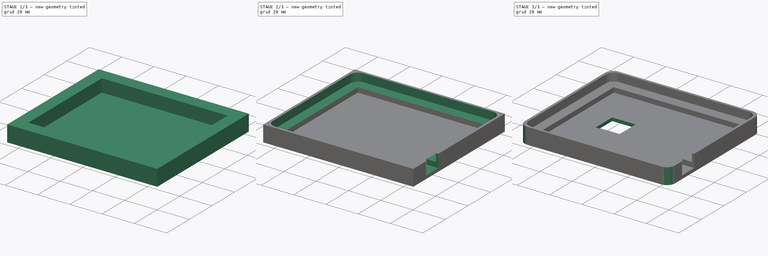
[diagram: build sequence overview — one tinted view per stage of 3, left to right]
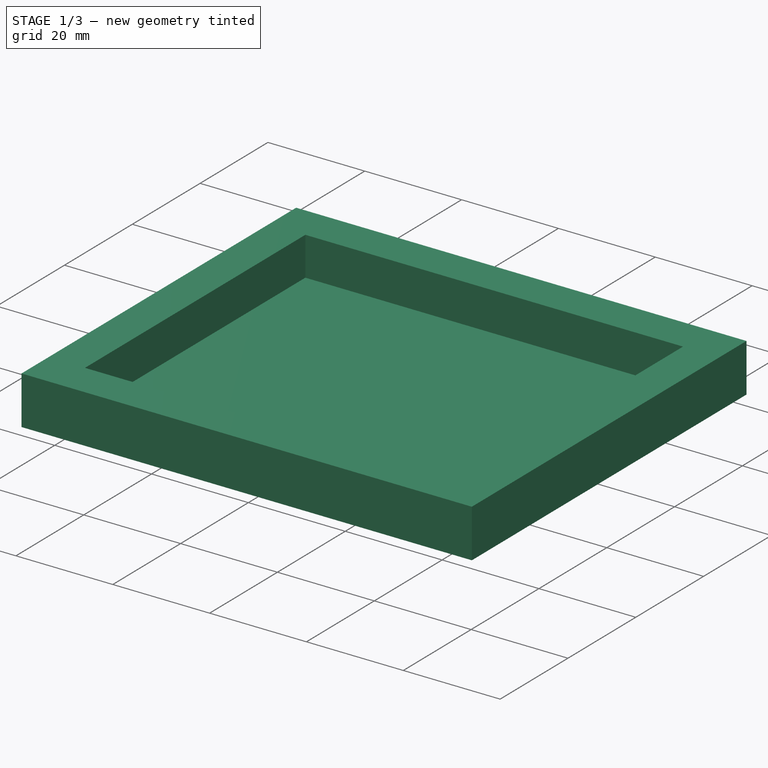
[diagram: stage 1 of 3 — iso view after this stage's code; geometry added in this stage tinted green]
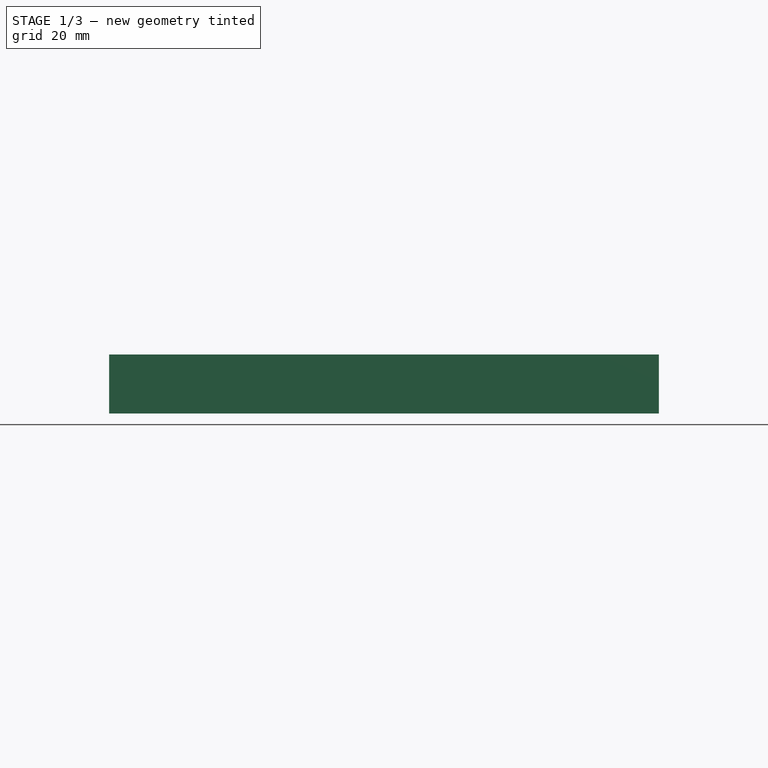
[diagram: stage 1 of 3 — front view after this stage's code; geometry added in this stage tinted green]
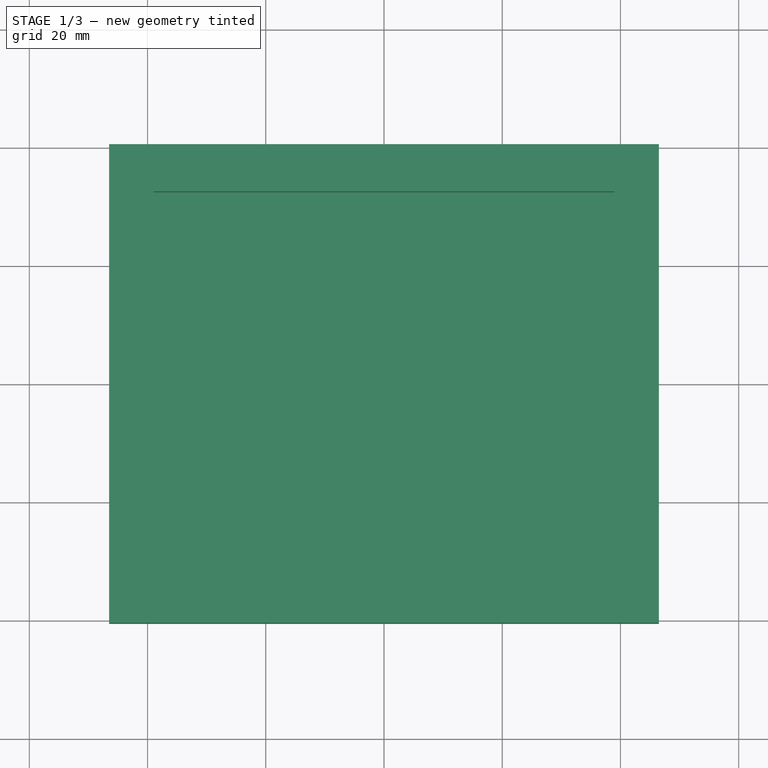
[diagram: stage 1 of 3 — top view after this stage's code; geometry added in this stage tinted green]
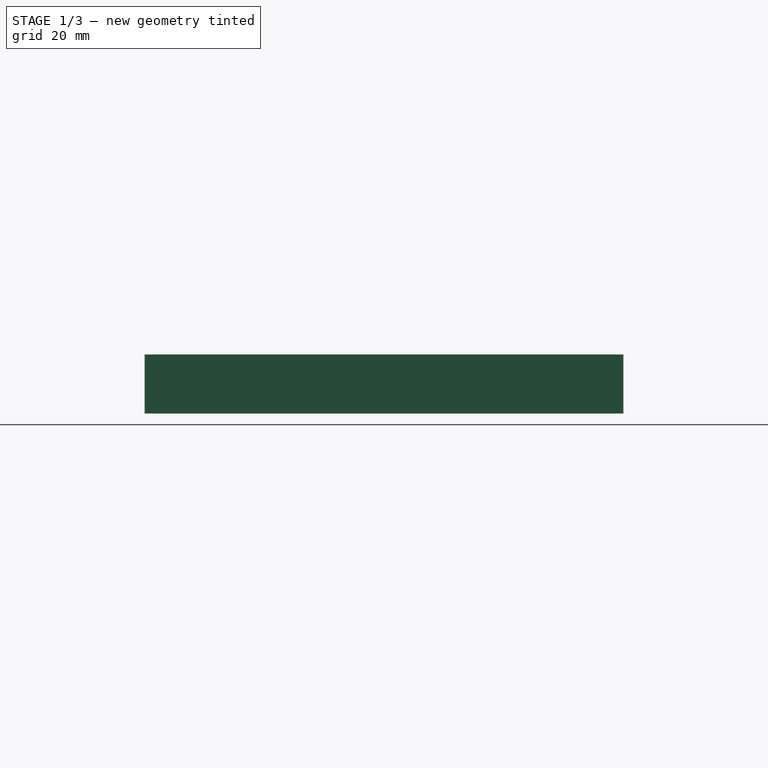
[diagram: stage 1 of 3 — right view after this stage's code; geometry added in this stage tinted green]
FCSTD DOCUMENT  (FreeCAD 0.16R)
Label: fistbump_lid
License: All rights reserved
LicenseURL: http://en.wikipedia.org/wiki/All_rights_reserved
objects: Sketcher::SketchObject×5, PartDesign::Pocket×4, PartDesign::Fillet×2, PartDesign::Pad×1
note: 17 computed .brp shape members not serialized (recipe doc carries the construction recipe); baked Part::Feature solids carry a one-line shape summary decoded from their .brp

FEATURE [Sketcher::SketchObject] Sketch
  sketch-geometry (4):
    g0: LineSegment StartX=-46.5 StartY=40.5 StartZ=0 EndX=46.5 EndY=40.5 EndZ=0
    g1: LineSegment StartX=46.5 StartY=40.5 StartZ=0 EndX=46.5 EndY=-40.5 EndZ=0
    g2: LineSegment StartX=46.5 StartY=-40.5 StartZ=0 EndX=-46.5 EndY=-40.5 EndZ=0
    g3: LineSegment StartX=-46.5 StartY=-40.5 StartZ=0 EndX=-46.5 EndY=40.5 EndZ=0
  constraints (12):
    c: Coincident(g0,g1)
    c: Coincident(g1,g2)
    c: Coincident(g2,g3)
    c: Coincident(g3,g0)
    c: Horizontal(g0)
    c: Horizontal(g2)
    c: Vertical(g1)
    c: Vertical(g3)
    c: DistanceX(g0,g0) = 93
    c: DistanceY(g3,g3) = 81
    c: Symmetric(g0,g0,g-2)
    c: Symmetric(g0,g2,g-1)
FEATURE [PartDesign::Pad] Pad
  Length = 10
  Length2 = 100
  Sketch = -> Sketch
  Type = 0
FEATURE [Sketcher::SketchObject] Sketch001
  Placement = pos=(0,0,10) rot=(0,0,1;0rad)
  Support = -> Pad [Face6]
  sketch-geometry (4):
    g0: LineSegment StartX=-39 StartY=32.5 StartZ=0 EndX=39 EndY=32.5 EndZ=0
    g1: LineSegment StartX=39 StartY=32.5 StartZ=0 EndX=39 EndY=-32.5 EndZ=0
    g2: LineSegment StartX=39 StartY=-32.5 StartZ=0 EndX=-39 EndY=-32.5 EndZ=0
    g3: LineSegment StartX=-39 StartY=-32.5 StartZ=0 EndX=-39 EndY=32.5 EndZ=0
  constraints (12):
    c: Coincident(g0,g1)
    c: Coincident(g1,g2)
    c: Coincident(g2,g3)
    c: Coincident(g3,g0)
    c: Horizontal(g0)
    c: Horizontal(g2)
    c: Vertical(g1)
    c: Vertical(g3)
    c: Symmetric(g0,g0,g-2)
    c: Symmetric(g0,g2,g-1)
    c: DistanceX(g0,g0) = 78
    c: DistanceY(g3,g3) = 65
FEATURE [PartDesign::Pocket] Pocket
  Length = 8
  Sketch = -> Sketch001
  Type = 0
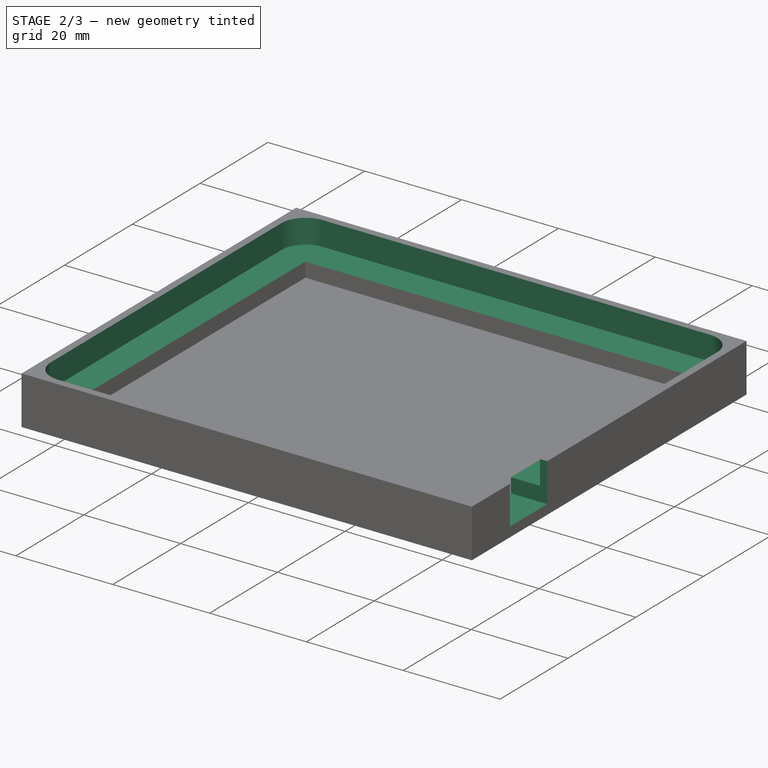
[diagram: stage 2 of 3 — iso view after this stage's code; geometry added in this stage tinted green]
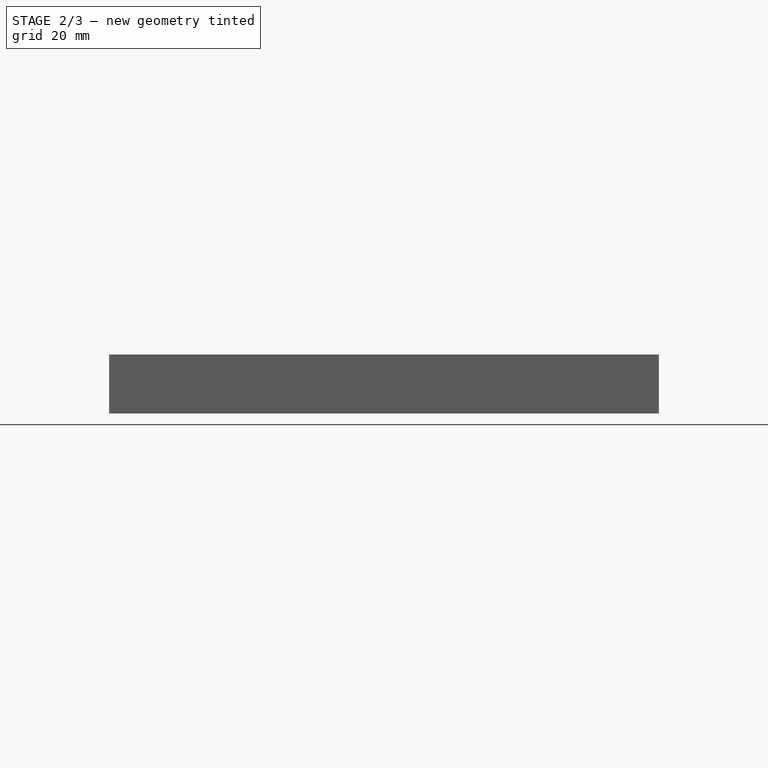
[diagram: stage 2 of 3 — front view after this stage's code; geometry added in this stage tinted green]
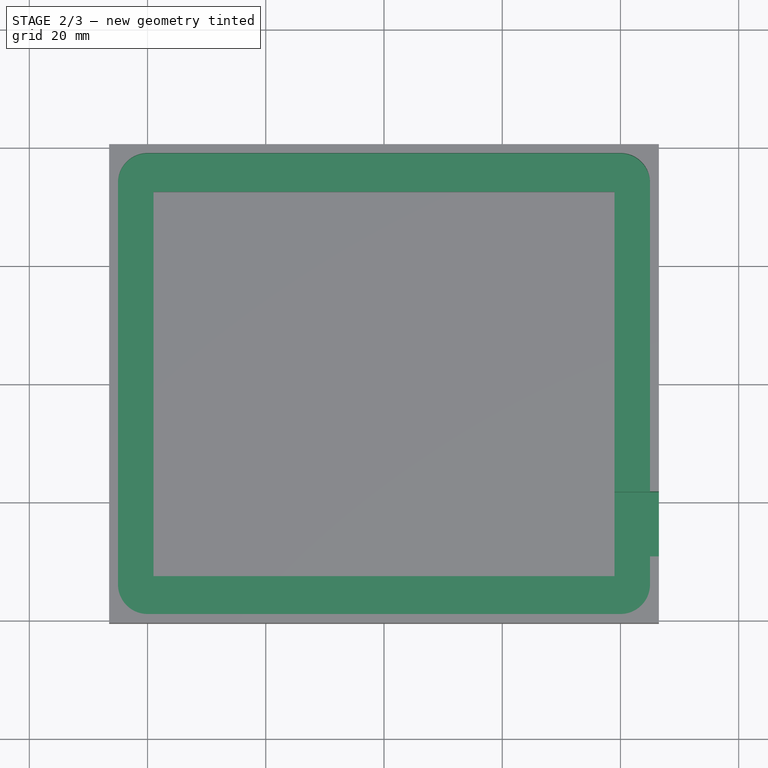
[diagram: stage 2 of 3 — top view after this stage's code; geometry added in this stage tinted green]
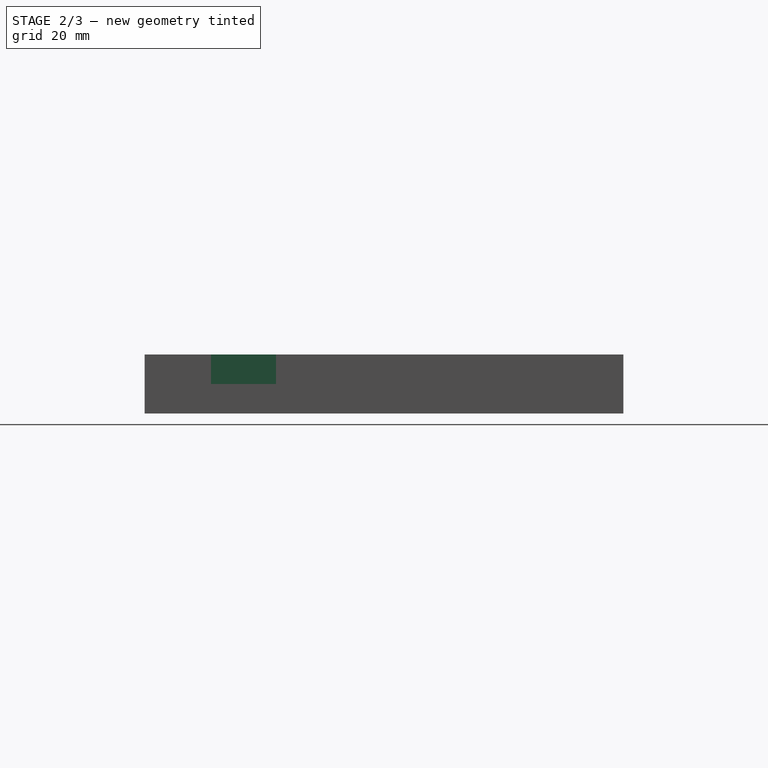
[diagram: stage 2 of 3 — right view after this stage's code; geometry added in this stage tinted green]
FEATURE [Sketcher::SketchObject] Sketch002
  Placement = pos=(0,0,10) rot=(0,0,1;0rad)
  Support = -> Pocket [Face5]
  sketch-geometry (4):
    g0: LineSegment StartX=-45 StartY=39 StartZ=0 EndX=45 EndY=39 EndZ=0
    g1: LineSegment StartX=45 StartY=39 StartZ=0 EndX=45 EndY=-39 EndZ=0
    g2: LineSegment StartX=45 StartY=-39 StartZ=0 EndX=-45 EndY=-39 EndZ=0
    g3: LineSegment StartX=-45 StartY=-39 StartZ=0 EndX=-45 EndY=39 EndZ=0
  constraints (12):
    c: Coincident(g0,g1)
    c: Coincident(g1,g2)
    c: Coincident(g2,g3)
    c: Coincident(g3,g0)
    c: Horizontal(g0)
    c: Horizontal(g2)
    c: Vertical(g1)
    c: Vertical(g3)
    c: Symmetric(g0,g0,g-2)
    c: Symmetric(g0,g2,g-1)
    c: DistanceX(g0,g0) = 90
    c: DistanceY(g3,g3) = 78
FEATURE [PartDesign::Pocket] Pocket001
  Length = 5
  Sketch = -> Sketch002
  Type = 0
FEATURE [Sketcher::SketchObject] Sketch003
  Placement = pos=(0,0,10) rot=(0,0,1;0rad)
  Support = -> Pocket001 [Face5]
  sketch-geometry (4):
    g0: LineSegment StartX=36.9489 StartY=-18.2601 StartZ=0 EndX=48.5391 EndY=-18.2601 EndZ=0
    g1: LineSegment StartX=48.5391 StartY=-18.2601 StartZ=0 EndX=48.5391 EndY=-29.2601 EndZ=0
    g2: LineSegment StartX=48.5391 StartY=-29.2601 StartZ=0 EndX=36.9489 EndY=-29.2601 EndZ=0
    g3: LineSegment StartX=36.9489 StartY=-29.2601 StartZ=0 EndX=36.9489 EndY=-18.2601 EndZ=0
  constraints (12):
    c: Coincident(g0,g1)
    c: Coincident(g1,g2)
    c: Coincident(g2,g3)
    c: Coincident(g3,g0)
    c: Horizontal(g0)
    c: Horizontal(g2)
    c: Vertical(g1)
    c: Vertical(g3)
    c: DistanceY(g1,g1) = 11
    c: DistanceY(g0,g-1) = 18.2601
    c: DistanceX(g0,g0) = 11.5902
    c: DistanceX(g-1,g0) = 36.9489
FEATURE [PartDesign::Pocket] Pocket002
  Length = 8
  Sketch = -> Sketch003
  Type = 0
FEATURE [PartDesign::Fillet] Fillet
  Base = -> Pocket002 [Edge40,Edge38,Edge33,Edge36]
  Radius = 5
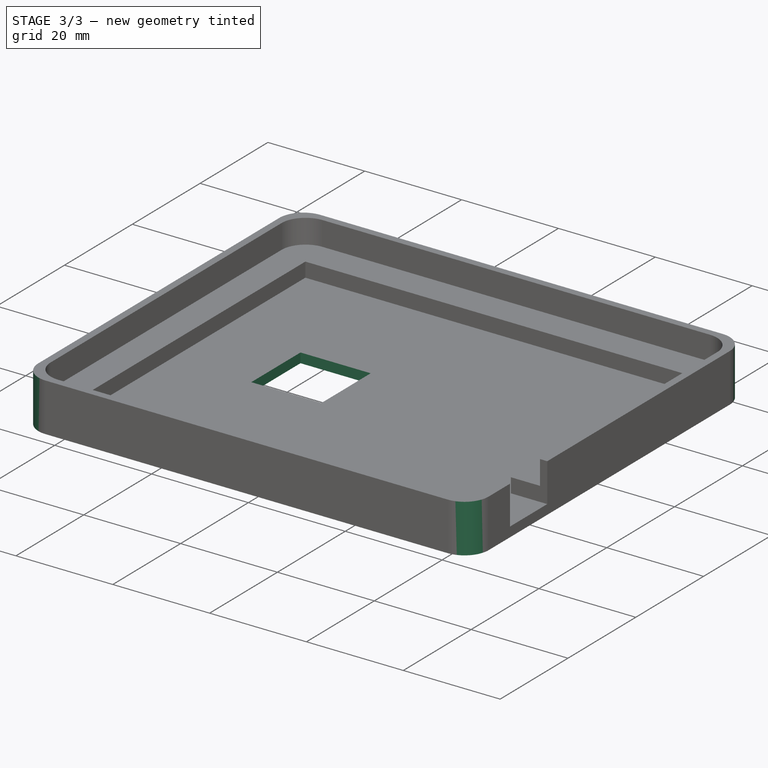
[diagram: stage 3 of 3 — iso view after this stage's code; geometry added in this stage tinted green]
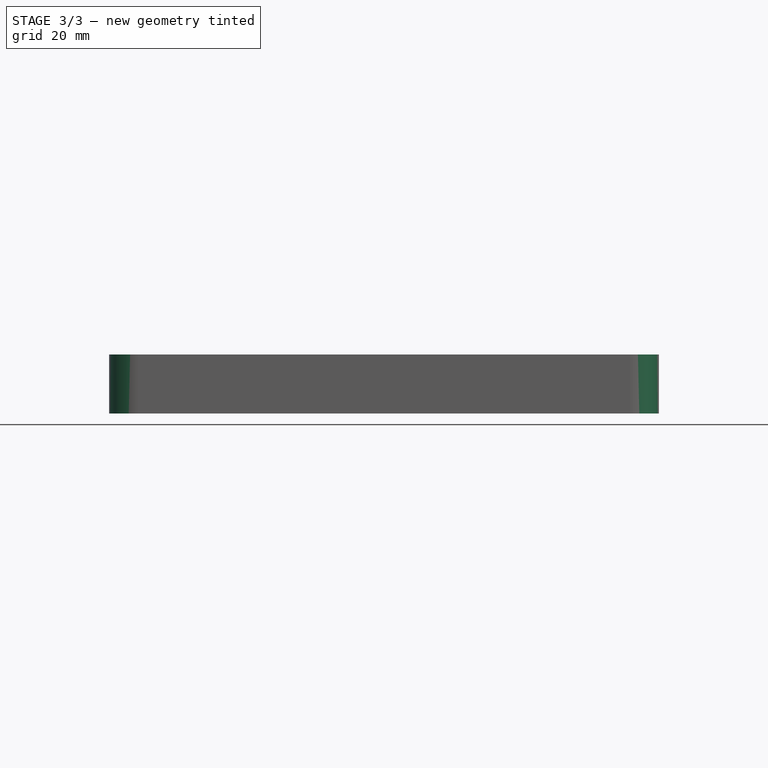
[diagram: stage 3 of 3 — front view after this stage's code; geometry added in this stage tinted green]
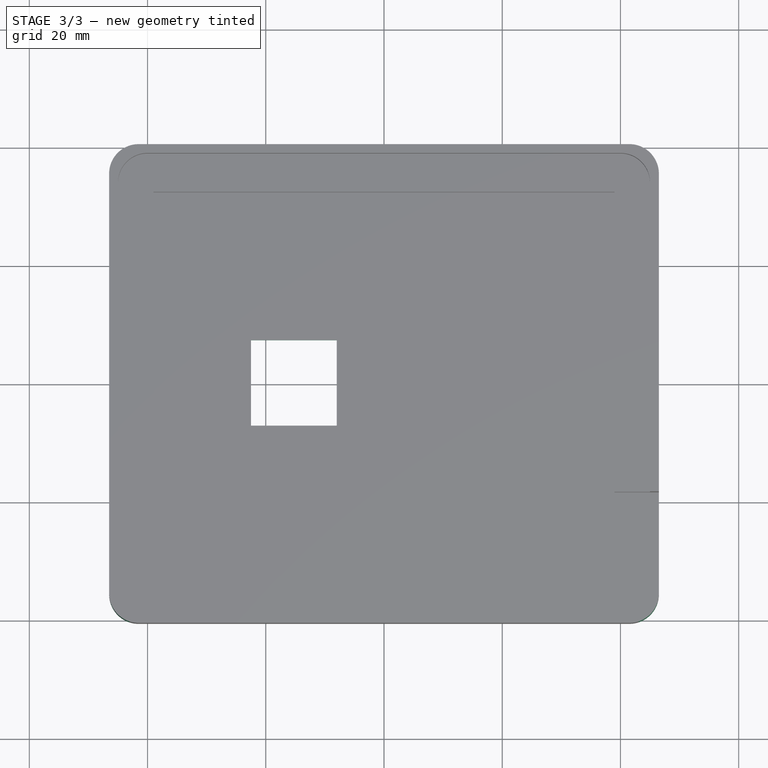
[diagram: stage 3 of 3 — top view after this stage's code; geometry added in this stage tinted green]
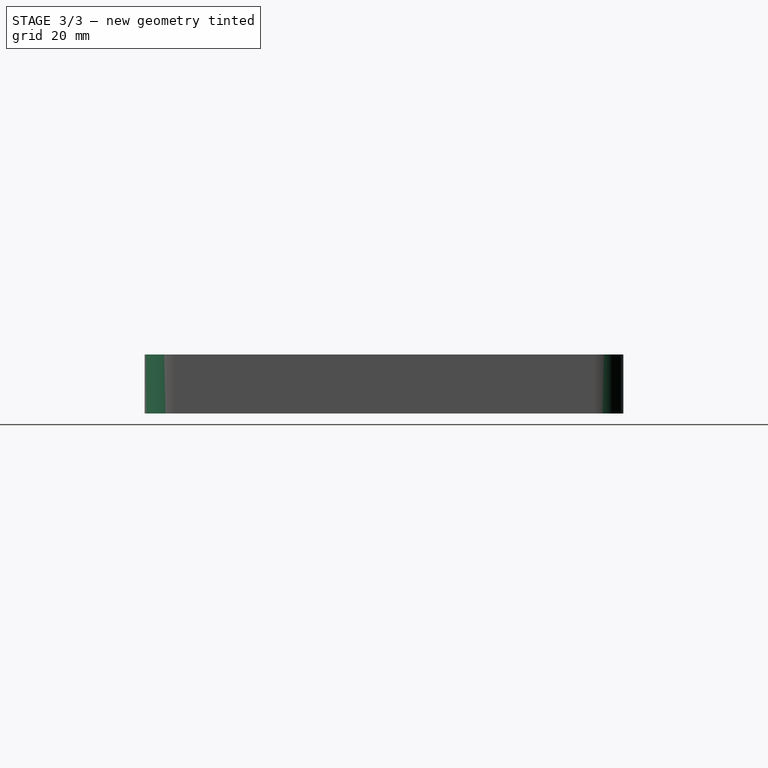
[diagram: stage 3 of 3 — right view after this stage's code; geometry added in this stage tinted green]
FEATURE [PartDesign::Fillet] Fillet001
  Base = -> Fillet [Edge29,Edge35,Edge39,Edge32]
  Radius = 5
FEATURE [Sketcher::SketchObject] Sketch004
  Placement = pos=(0,0,0) rot=(1,0,0;3.14159rad)
  Support = -> Fillet001 [Face21]
  sketch-geometry (6):
    g0: LineSegment [constr] StartX=-46.5 StartY=31.8886 StartZ=0 EndX=-46.5 EndY=-39.9435 EndZ=0
    g1: LineSegment [constr] StartX=-41.7207 StartY=-40.5 StartZ=0 EndX=13.6013 EndY=-40.5 EndZ=0
    g2: LineSegment StartX=-8 StartY=-7.5 StartZ=0 EndX=-22.5 EndY=-7.5 EndZ=0
    g3: LineSegment StartX=-22.5 StartY=-7.5 StartZ=0 EndX=-22.5 EndY=7 EndZ=0
    g4: LineSegment StartX=-22.5 StartY=7 StartZ=0 EndX=-8 EndY=7 EndZ=0
    g5: LineSegment StartX=-8 StartY=7 StartZ=0 EndX=-8 EndY=-7.5 EndZ=0
  constraints (20):
    c: Vertical(g0)
    c: Horizontal(g1)
    c: DistanceX(g1,g1) = 55.322
    c: DistanceY(g0,g0) = 71.8321
    c: DistanceX(g0,g-1) = 46.5
    c: DistanceY(g1,g-1) = 40.5
    c: DistanceX(g0,g1) = 4.77928
    c: DistanceY(g0,g-1) = 39.9435
    c: Coincident(g2,g3)
    c: Coincident(g3,g4)
    c: Coincident(g4,g5)
    c: Coincident(g5,g2)
    c: Horizontal(g2)
    c: Horizontal(g4)
    c: Vertical(g3)
    c: Vertical(g5)
    c: Equal(g4,g3)
    c: DistanceX(g4,g4) = 14.5
    c: DistanceX(g0,g3) = 24
    c: DistanceY(g1,g2) = 33
FEATURE [PartDesign::Pocket] Pocket003
  Length = 5
  Sketch = -> Sketch004
  Type = 1
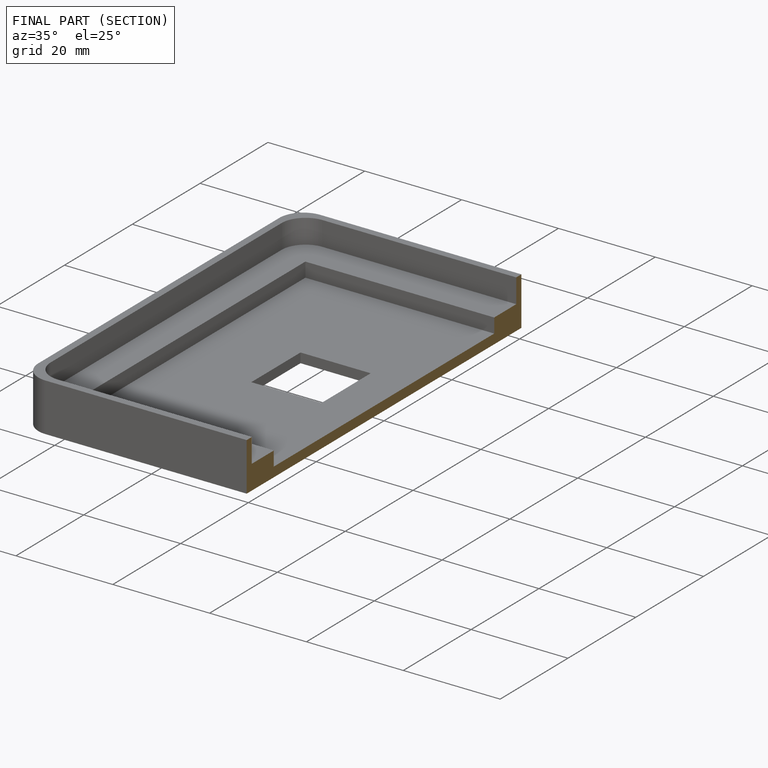
[diagram: finished part — half-section view (interior)]
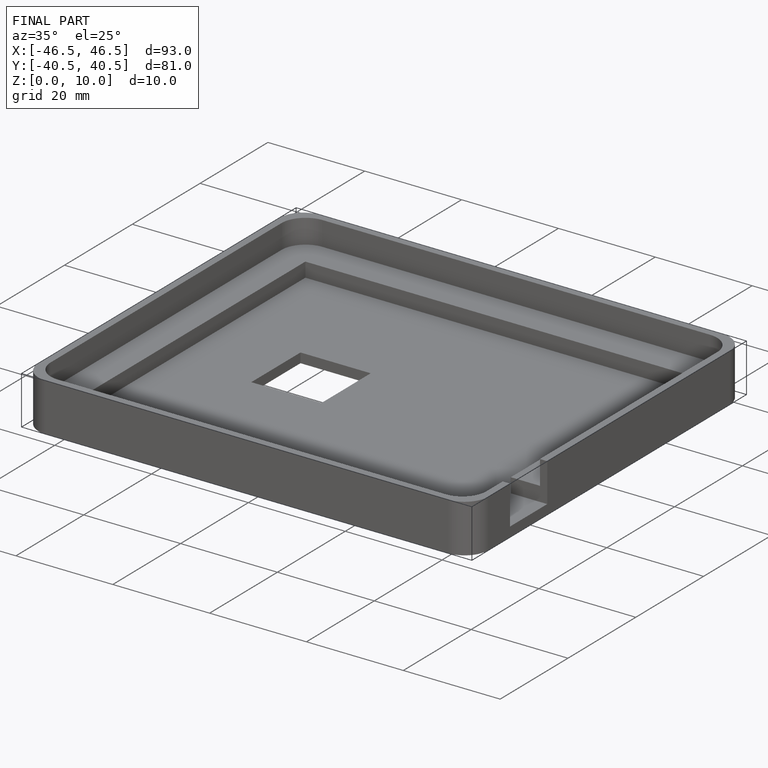
[diagram: finished part — iso view with bounding-box wireframe]
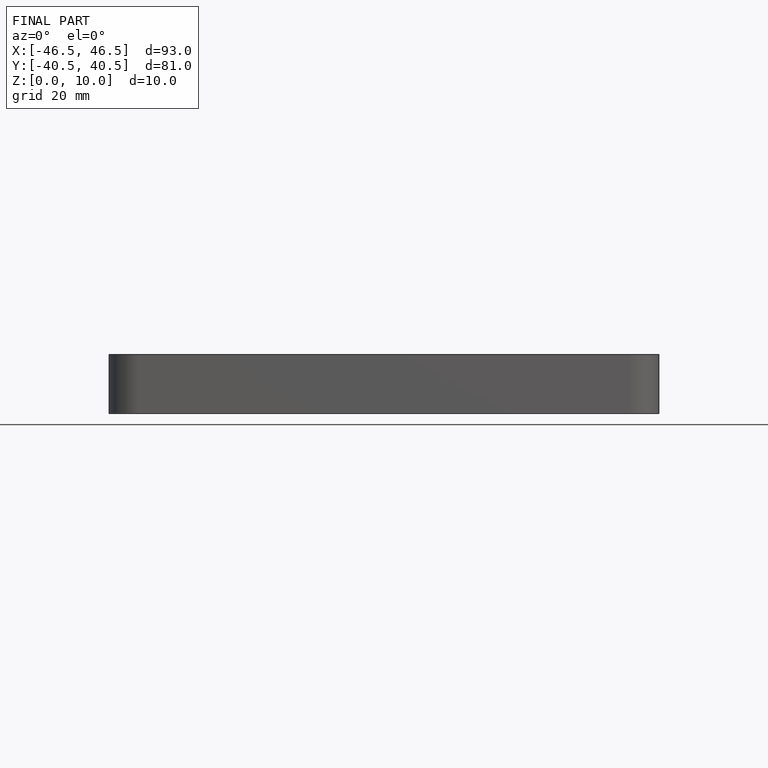
[diagram: finished part — front view with bounding-box wireframe]
